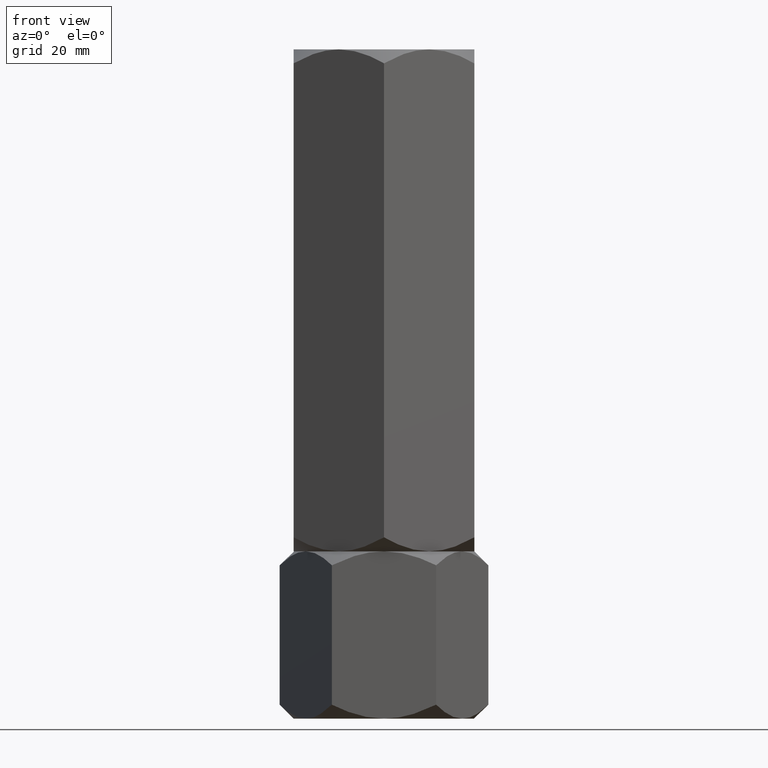
[diagram: clean part render]
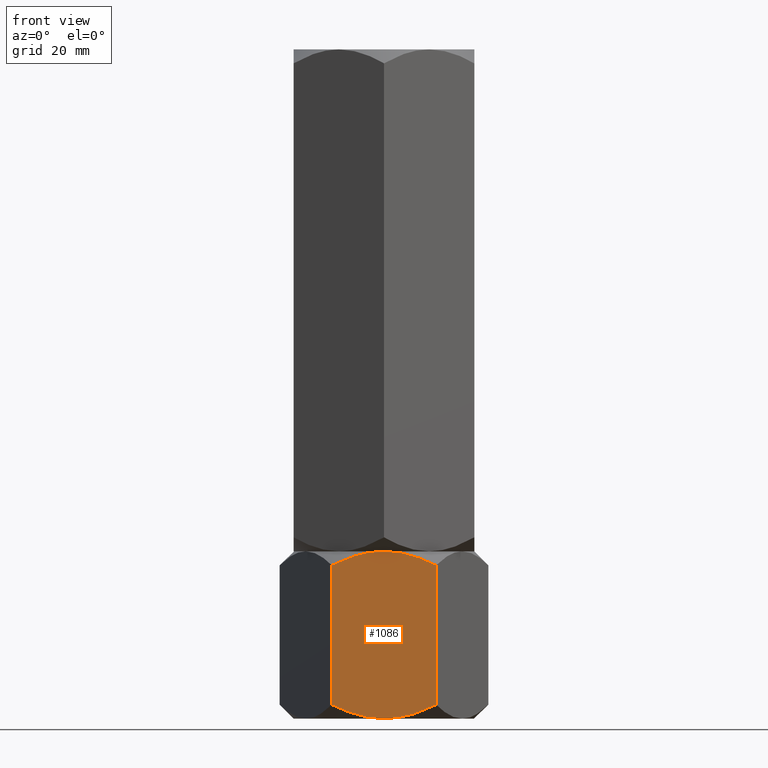
[diagram: same view with one face highlighted and labeled with its STEP entity id]
A machine part, front view. The second image highlights one B-rep face of the part: STEP entity #1086.
In plain terms, the highlighted planar face has unit normal (-0, 1, 0).
Its self-contained STEP definition (entity closure, byte-faithful):
#6 = ORIENTED_EDGE ( 'NONE', *, *, #93, .F. ) ;
#36 = B_SPLINE_CURVE_WITH_KNOTS ( 'NONE', 3,
 ( #1333, #517, #1155, #1953, #1474, #1010, #666, #656, #1937, #1021 ),
 .UNSPECIFIED., .F., .F.,
 ( 4, 2, 2, 2, 4 ),
 ( 0.06161726168506581613, 0.06431523531013789985, 0.06566422212267393477, 0.06701320893520996969, 0.07240915618535412324 ),
 .UNSPECIFIED. ) ;
#44 = EDGE_LOOP ( 'NONE', ( #6, #48, #1156, #1492, #891, #952 ) ) ;
#48 = ORIENTED_EDGE ( 'NONE', *, *, #1441, .T. ) ;
#52 = PLANE ( 'NONE',  #732 ) ;
#64 = CARTESIAN_POINT ( 'NONE',  ( -1.804565745311152325, -18.00000000000000355, 33.24872234649104286 ) ) ;
#93 = EDGE_CURVE ( 'NONE', #1174, #1149, #1254, .T. ) ;
#150 = CARTESIAN_POINT ( 'NONE',  ( 7.075106353536194881, -18.00000000000000000, 1.325263476329341605 ) ) ;
#159 = CARTESIAN_POINT ( 'NONE',  ( 3.137971139320007818, -18.00000000000000711, 33.06718255962365305 ) ) ;
#184 = CARTESIAN_POINT ( 'NONE',  ( -10.39230484541326405, -18.00000000000000355, 30.54872364250677563 ) ) ;
#226 = CARTESIAN_POINT ( 'NONE',  ( -10.39230484541326227, -18.00000000000000355, 2.784609690826521877 ) ) ;
#244 = CARTESIAN_POINT ( 'NONE',  ( -0.9002413815126270036, -18.00000000000001066, 33.31647646091371229 ) ) ;
#304 = CARTESIAN_POINT ( 'NONE',  ( 1.799853003699880105, -17.99999999999999645, 33.26509944892497828 ) ) ;
#318 = CARTESIAN_POINT ( 'NONE',  ( 8.776755605963904472, -18.00000000000000355, 31.35649826223145453 ) ) ;
#324 = CARTESIAN_POINT ( 'NONE',  ( 0.4494445606874124532, -18.00000000000000711, 1.665266774301954664E-15 ) ) ;
#326 = CARTESIAN_POINT ( 'NONE',  ( 7.110040999954845731, -18.00000000000000711, 32.05339839988550210 ) ) ;
#451 = EDGE_CURVE ( 'NONE', #1149, #1714, #1739, .T. ) ;
#504 = DIRECTION ( 'NONE',  ( -1.000000000000000000, -1.669238443041288415E-16, 0.000000000000000000 ) ) ;
#505 = VERTEX_POINT ( 'NONE', #226 ) ;
#517 = CARTESIAN_POINT ( 'NONE',  ( -0.9026633666619900964, -18.00000000000000355, 1.879283765641541676E-15 ) ) ;
#519 = DIRECTION ( 'NONE',  ( -0.000000000000000000, -0.000000000000000000, -1.000000000000000000 ) ) ;
#522 = CARTESIAN_POINT ( 'NONE',  ( 3.004629197474318851E-15, -18.00000000000000000, 33.33333333333330017 ) ) ;
#610 = FACE_OUTER_BOUND ( 'NONE', #44, .T. ) ;
#624 = CARTESIAN_POINT ( 'NONE',  ( 3.582737890600638409, -18.00000000000000000, 32.98534607053208845 ) ) ;
#656 = CARTESIAN_POINT ( 'NONE',  ( -7.110040999954856389, -18.00000000000000355, 1.279934933447800072 ) ) ;
#658 = CARTESIAN_POINT ( 'NONE',  ( -7.075106353536198434, -17.99999999999999645, 32.00806985700393170 ) ) ;
#666 = CARTESIAN_POINT ( 'NONE',  ( -4.913571642337144496, -18.00000000000000711, 0.6538437536460127708 ) ) ;
#731 = CARTESIAN_POINT ( 'NONE',  ( -2.259904121284822764, -18.00000000000000000, 33.19747394958513098 ) ) ;
#732 = AXIS2_PLACEMENT_3D ( 'NONE', #1491, #1947, #504 ) ;
#780 = CARTESIAN_POINT ( 'NONE',  ( 4.469866588357230164, -18.00000000000000711, 32.79169551136939731 ) ) ;
#787 = CARTESIAN_POINT ( 'NONE',  ( 3.004629197474318851E-15, -18.00000000000000000, 0.000000000000000000 ) ) ;
#820 = CARTESIAN_POINT ( 'NONE',  ( -9.584903723681017951, -18.00000000000000711, 30.95242420337289602 ) ) ;
#850 = CARTESIAN_POINT ( 'NONE',  ( 8.755178905241947973, -18.00000000000000000, 2.001545844721454692 ) ) ;
#891 = ORIENTED_EDGE ( 'NONE', *, *, #1748, .F. ) ;
#952 = ORIENTED_EDGE ( 'NONE', *, *, #451, .F. ) ;
#954 = CARTESIAN_POINT ( 'NONE',  ( 9.584903723681010845, -18.00000000000000355, 2.380909129960393056 ) ) ;
#1010 = CARTESIAN_POINT ( 'NONE',  ( -4.469866588357224835, -18.00000000000000000, 0.5416378219639074176 ) ) ;
#1021 = CARTESIAN_POINT ( 'NONE',  ( -10.39230484541326227, -18.00000000000000355, 2.784609690826521877 ) ) ;
#1069 = CARTESIAN_POINT ( 'NONE',  ( 3.004629197474318851E-15, -18.00000000000000000, 33.33333333333330017 ) ) ;
#1086 = ADVANCED_FACE ( 'NONE', ( #610 ), #52, .F. ) ;
#1088 = CARTESIAN_POINT ( 'NONE',  ( 10.39230484541326227, -18.00000000000000000, 30.54872364250678274 ) ) ;
#1129 = CARTESIAN_POINT ( 'NONE',  ( 4.490362039994827192, -18.00000000000000711, 0.5330411745022600734 ) ) ;
#1139 = EDGE_CURVE ( 'NONE', #1960, #505, #36, .T. ) ;
#1149 = VERTEX_POINT ( 'NONE', #522 ) ;
#1155 = CARTESIAN_POINT ( 'NONE',  ( -1.799853003699874110, -18.00000000000000355, 0.06823388440831962276 ) ) ;
#1156 = ORIENTED_EDGE ( 'NONE', *, *, #1139, .F. ) ;
#1171 = CARTESIAN_POINT ( 'NONE',  ( -10.39230484541326227, -18.00000000000000355, 33.33333333333330017 ) ) ;
#1174 = VERTEX_POINT ( 'NONE', #1636 ) ;
#1199 = EDGE_CURVE ( 'NONE', #1827, #1960, #1883, .T. ) ;
#1243 = CARTESIAN_POINT ( 'NONE',  ( 10.39230484541326227, -18.00000000000000000, 30.54872364250678274 ) ) ;
#1254 = B_SPLINE_CURVE_WITH_KNOTS ( 'NONE', 3,
 ( #184, #820, #1467, #658, #1985, #1350, #2003, #731, #64, #244, #1992, #1069 ),
 .UNSPECIFIED., .F., .F.,
 ( 4, 2, 2, 2, 2, 4 ),
 ( 0.05087049060338694195, 0.05355718337380666050, 0.05624387614422637210, 0.05893056891464609065, 0.06027391529985594992, 0.06161726168506580920 ),
 .UNSPECIFIED. ) ;
#1284 = CARTESIAN_POINT ( 'NONE',  ( 2.259904121284833423, -18.00000000000000711, 0.1358593837481705258 ) ) ;
#1300 = CARTESIAN_POINT ( 'NONE',  ( 6.223364658448750752, -18.00000000000000000, 1.027362707364319450 ) ) ;
#1316 = LINE ( 'NONE', #1171, #1642 ) ;
#1333 = CARTESIAN_POINT ( 'NONE',  ( 3.004629197474318851E-15, -18.00000000000000000, 0.000000000000000000 ) ) ;
#1350 = CARTESIAN_POINT ( 'NONE',  ( -4.490362039994823640, -18.00000000000000711, 32.80029215883103433 ) ) ;
#1418 = VECTOR ( 'NONE', #2017, 1000.000000000000000 ) ;
#1441 = EDGE_CURVE ( 'NONE', #1174, #505, #1316, .T. ) ;
#1467 = CARTESIAN_POINT ( 'NONE',  ( -8.755178905241955079, -18.00000000000000355, 31.33178748861182328 ) ) ;
#1474 = CARTESIAN_POINT ( 'NONE',  ( -3.582737890600630859, -18.00000000000000711, 0.3479872628012171676 ) ) ;
#1491 = CARTESIAN_POINT ( 'NONE',  ( -10.39230484541326227, -18.00000000000000355, 33.33333333333330017 ) ) ;
#1492 = ORIENTED_EDGE ( 'NONE', *, *, #1199, .F. ) ;
#1509 = CARTESIAN_POINT ( 'NONE',  ( 3.004629197474318851E-15, -18.00000000000000000, 0.000000000000000000 ) ) ;
#1588 = CARTESIAN_POINT ( 'NONE',  ( 0.9002413815126293350, -18.00000000000000000, 0.01685687241959744898 ) ) ;
#1636 = CARTESIAN_POINT ( 'NONE',  ( -10.39230484541326405, -18.00000000000000355, 30.54872364250677563 ) ) ;
#1642 = VECTOR ( 'NONE', #519, 1000.000000000000000 ) ;
#1714 = VERTEX_POINT ( 'NONE', #1088 ) ;
#1739 = B_SPLINE_CURVE_WITH_KNOTS ( 'NONE', 3,
 ( #1901, #1740, #304, #159, #624, #780, #2051, #326, #318, #1243 ),
 .UNSPECIFIED., .F., .F.,
 ( 4, 2, 2, 2, 4 ),
 ( 0.06161726168506580920, 0.06431523531013788597, 0.06566422212267392089, 0.06701320893520995581, 0.07240915618535410936 ),
 .UNSPECIFIED. ) ;
#1740 = CARTESIAN_POINT ( 'NONE',  ( 0.9026633666619900964, -18.00000000000000355, 33.33333333333330017 ) ) ;
#1748 = EDGE_CURVE ( 'NONE', #1714, #1827, #2028, .T. ) ;
#1767 = CARTESIAN_POINT ( 'NONE',  ( 1.804565745311155212, -18.00000000000000000, 0.08461098684226332767 ) ) ;
#1827 = VERTEX_POINT ( 'NONE', #1884 ) ;
#1870 = CARTESIAN_POINT ( 'NONE',  ( 10.39230484541326227, -18.00000000000000000, 33.33333333333330017 ) ) ;
#1883 = B_SPLINE_CURVE_WITH_KNOTS ( 'NONE', 3,
 ( #1963, #954, #850, #150, #1300, #1129, #1934, #1284, #1767, #1588, #324, #787 ),
 .UNSPECIFIED., .F., .F.,
 ( 4, 2, 2, 2, 2, 4 ),
 ( 0.05087049060338695583, 0.05355718337380667438, 0.05624387614422638598, 0.05893056891464609759, 0.06027391529985595686, 0.06161726168506581613 ),
 .UNSPECIFIED. ) ;
#1884 = CARTESIAN_POINT ( 'NONE',  ( 10.39230484541326227, -18.00000000000000000, 2.784609690826516104 ) ) ;
#1901 = CARTESIAN_POINT ( 'NONE',  ( 3.004629197474318851E-15, -18.00000000000000000, 33.33333333333330017 ) ) ;
#1934 = CARTESIAN_POINT ( 'NONE',  ( 3.609079520572080479, -18.00000000000000000, 0.3366946526511047089 ) ) ;
#1937 = CARTESIAN_POINT ( 'NONE',  ( -8.776755605963909801, -18.00000000000000711, 1.976835071101847197 ) ) ;
#1947 = DIRECTION ( 'NONE',  ( -1.669238443041288415E-16, 1.000000000000000000, 0.000000000000000000 ) ) ;
#1953 = CARTESIAN_POINT ( 'NONE',  ( -3.137971139320000713, -18.00000000000000355, 0.2661507737096506787 ) ) ;
#1960 = VERTEX_POINT ( 'NONE', #1509 ) ;
#1963 = CARTESIAN_POINT ( 'NONE',  ( 10.39230484541326227, -18.00000000000000000, 2.784609690826516104 ) ) ;
#1985 = CARTESIAN_POINT ( 'NONE',  ( -6.223364658448748976, -18.00000000000000000, 32.30597062596896052 ) ) ;
#1992 = CARTESIAN_POINT ( 'NONE',  ( -0.4494445606874118426, -18.00000000000000355, 33.33333333333330017 ) ) ;
#2003 = CARTESIAN_POINT ( 'NONE',  ( -3.609079520572072042, -18.00000000000000355, 32.99663868068219585 ) ) ;
#2017 = DIRECTION ( 'NONE',  ( -0.000000000000000000, -0.000000000000000000, -1.000000000000000000 ) ) ;
#2028 = LINE ( 'NONE', #1870, #1418 ) ;
#2051 = CARTESIAN_POINT ( 'NONE',  ( 4.913571642337134726, -18.00000000000000355, 32.67948957968729218 ) ) ;